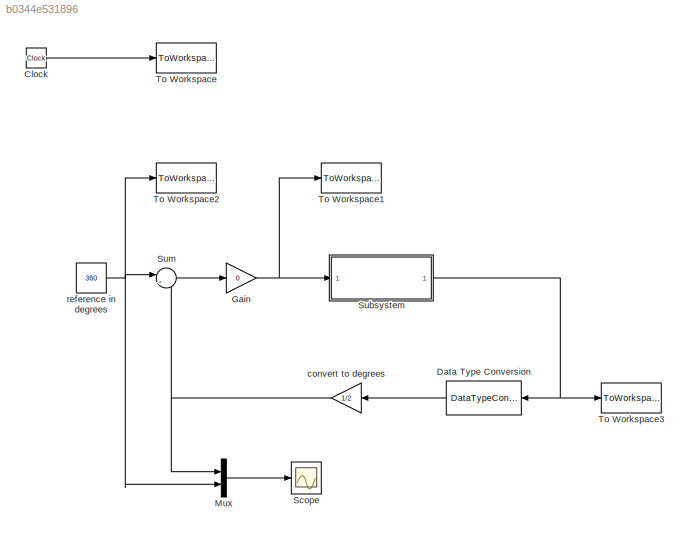
MODEL slx_b0344e531896
KIND model
CONFIG AbsTol = auto
CONFIG FixedStep = sim_step_size
CONFIG MaxStep = auto
CONFIG MinStep = auto
CONFIG RelTol = 1e-3
CONFIG SampleTimeConstraint = Unconstrained
CONFIG Solver = ode5
CONFIG SolverMode = Auto
CONFIG SolverName = ode5
CONFIG StartTime = 0.0
CONFIG StopTime = sim_stop_time
BLOCK [Clock] Clock
BLOCK [DataTypeConversion] Data Type Conversion
  OutDataTypeStr = double
  RndMeth = Floor
  SaturateOnIntegerOverflow = off
BLOCK [Gain] Gain
  Gain = 0
  OutDataTypeStr = Inherit: Inherit via internal rule
  ParamDataTypeStr = Inherit: Inherit via internal rule
  SaturateOnIntegerOverflow = off
BLOCK [Mux] Mux
  DisplayOption = bar
  Inputs = 2
  Ports = [2, 1]
BLOCK [Scope] Scope
  Floating = off
  NumInputPorts = 1
  Ports = [1]
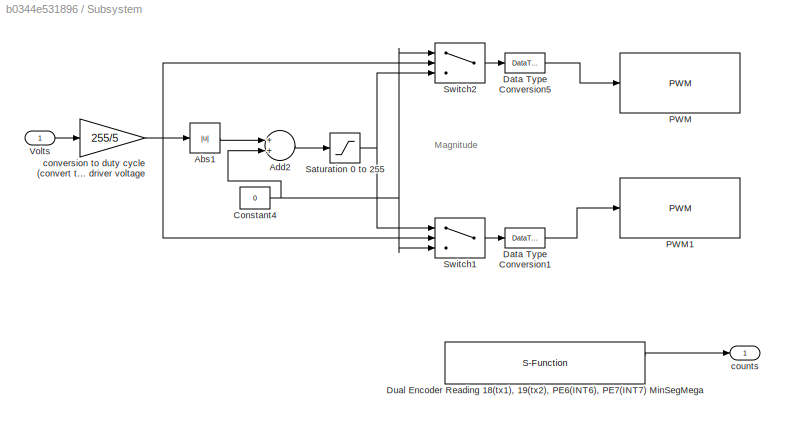
BLOCK [SubSystem] Subsystem
  Ports = [1, 1]
  RequestExecContextInheritance = off
BLOCK [Abs] Subsystem/Abs1
  SaturateOnIntegerOverflow = off
BLOCK [Sum] Subsystem/Add2
  InputSameDT = off
  OutDataTypeStr = Inherit: Inherit via internal rule
  Ports = [2, 1]
  SaturateOnIntegerOverflow = off
BLOCK [Constant] Subsystem/Constant4
  Value = 0
BLOCK [DataTypeConversion] Subsystem/Data Type Conversion1
  OutDataTypeStr = uint8
  RndMeth = Floor
  SaturateOnIntegerOverflow = off
BLOCK [DataTypeConversion] Subsystem/Data Type Conversion5
  OutDataTypeStr = uint8
  RndMeth = Floor
  SaturateOnIntegerOverflow = off
BLOCK [S-Function] Subsystem/Dual Encoder Reading 18(tx1), 19(tx2), PE6(INT6), PE7(INT7) MinSegMega 
  CopyFcn = set_param(gcbh,'LinkStatus','none')
  FunctionName = sf_QuadEncoder_18_19_INT6_INT7
  InitFcn = try, set_param(gcb,'FunctionName','sf_QuadEncoder_18_19_INT6_INT7'), end
  OpenFcn = sfunctionwizard(gcbh)
  Parameters = uint8([0 1]),uint8([18 6]),uint8([19 7])
  Ports = [0, 2]
  PreSaveFcn = try, set_param(gcb,'FunctionName','sf_QuadEncoder_18_19_INT6_INT7'), end
  SFunctionModules = sf_QuadEncoder_18_19_INT6_INT7_wrapper
BLOCK [Reference] Subsystem/PWM  REF=arduinolib/PWM
  Ports = [1]
  SourceBlock = arduinolib/PWM
  SourceType = Arduino PWM
  blockPlatform = arduino
  pinNumber = 44
BLOCK [Reference] Subsystem/PWM1  REF=arduinolib/PWM
  Ports = [1]
  SourceBlock = arduinolib/PWM
  SourceType = Arduino PWM
  blockPlatform = arduino
  pinNumber = 45
BLOCK [Saturate] Subsystem/Saturation 0 to 255
  InputPortMap = u0
  LowerLimit = 0
  Ports = [1, 1]
  UpperLimit = 255
BLOCK [Switch] Subsystem/Switch1
  InputSameDT = off
  SaturateOnIntegerOverflow = off
BLOCK [Switch] Subsystem/Switch2
  InputSameDT = off
  SaturateOnIntegerOverflow = off
BLOCK [Inport] Subsystem/Volts
  IconDisplay = Port number
BLOCK [Gain] Subsystem/conversion to duty cycle (convert to int) denominator is motor driver voltage
  Gain = 255/5
  OutDataTypeStr = int16
  ParamDataTypeStr = Inherit: Inherit via internal rule
  SaturateOnIntegerOverflow = off
BLOCK [Outport] Subsystem/counts 
  IconDisplay = Port number
BLOCK [Sum] Sum
  IconShape = round
  InputSameDT = off
  Inputs = |+-
  OutDataTypeStr = Inherit: Inherit via internal rule
  Ports = [2, 1]
  SaturateOnIntegerOverflow = off
BLOCK [ToWorkspace] To Workspace
  FixptAsFi = on
  MaxDataPoints = inf
  Ports = [1]
  SampleTime = -1
  Save2DSignal = 3-D array (concatenate along third dimension)
  VariableName = T
BLOCK [ToWorkspace] To Workspace1
  FixptAsFi = on
  MaxDataPoints = inf
  Ports = [1]
  SampleTime = -1
  Save2DSignal = 3-D array (concatenate along third dimension)
  VariableName = vin
BLOCK [ToWorkspace] To Workspace2
  FixptAsFi = on
  MaxDataPoints = inf
  Ports = [1]
  SampleTime = -1
  Save2DSignal = 3-D array (concatenate along third dimension)
  VariableName = ref
BLOCK [ToWorkspace] To Workspace3
  FixptAsFi = on
  MaxDataPoints = inf
  Ports = [1]
  SampleTime = -1
  Save2DSignal = 3-D array (concatenate along third dimension)
  VariableName = pos
BLOCK [Gain] convert to degrees 
  Gain = 1/2
  OutDataTypeStr = Inherit: Inherit via internal rule
  ParamDataTypeStr = Inherit: Inherit via internal rule
  SaturateOnIntegerOverflow = off
BLOCK [Constant] reference in degrees 
  Value = 360
ANNOTATION Subsystem: Magnitude
LINE Clock:1 -> To Workspace:1
LINE Data Type Conversion:1 -> convert to degrees :1
NET Gain:1 -> Subsystem:1, To Workspace1:1
LINE Mux:1 -> Scope:1
LINE Subsystem/Abs1:1 -> Subsystem/Add2:1
LINE Subsystem/Add2:1 -> Subsystem/Saturation 0 to 255:1
NET Subsystem/Constant4:1 -> Subsystem/Add2:2, Subsystem/Switch1:3, Subsystem/Switch2:1
LINE Subsystem/Data Type Conversion1:1 -> Subsystem/PWM1:1
LINE Subsystem/Data Type Conversion5:1 -> Subsystem/PWM:1
LINE Subsystem/Dual Encoder Reading 18(tx1), 19(tx2), PE6(INT6), PE7(INT7) MinSegMega :1 -> Subsystem/counts :1
NET Subsystem/Saturation 0 to 255:1 -> Subsystem/Switch1:1, Subsystem/Switch2:3
LINE Subsystem/Switch1:1 -> Subsystem/Data Type Conversion1:1
LINE Subsystem/Switch2:1 -> Subsystem/Data Type Conversion5:1
LINE Subsystem/Volts:1 -> Subsystem/conversion to duty cycle (convert to int) denominator is motor driver voltage:1
NET Subsystem/conversion to duty cycle (convert to int) denominator is motor driver voltage:1 -> Subsystem/Abs1:1, Subsystem/Switch1:2, Subsystem/Switch2:2
NET Subsystem:1 -> Data Type Conversion:1, To Workspace3:1
LINE Sum:1 -> Gain:1
NET convert to degrees :1 -> Mux:1, Sum:2
NET reference in degrees :1 -> Mux:2, Sum:1, To Workspace2:1
note: NET lines group one-source signal fan-out (src -> all destinations, sorted); 1:1 wires keep LINE
